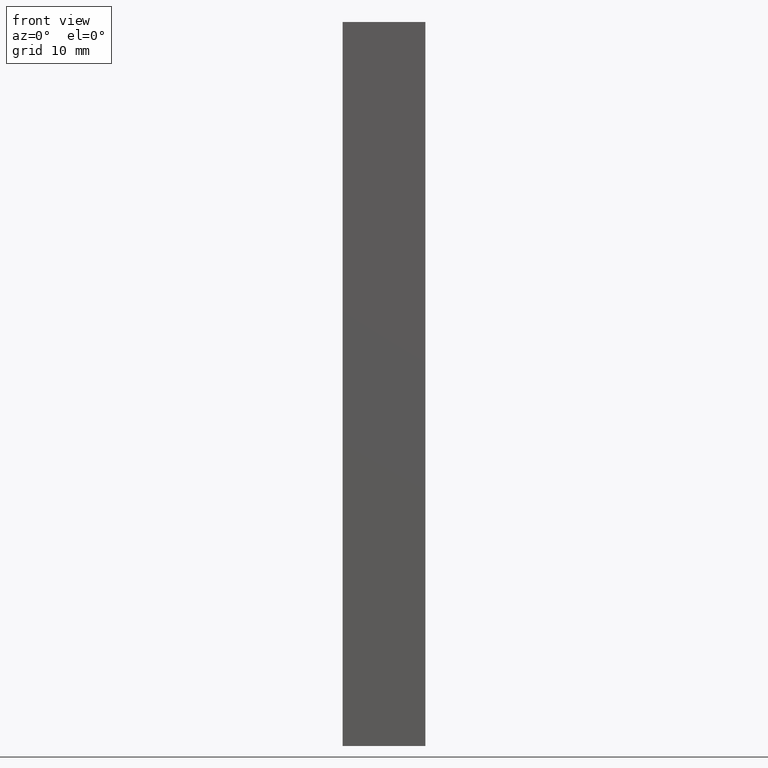
[diagram: clean part render]
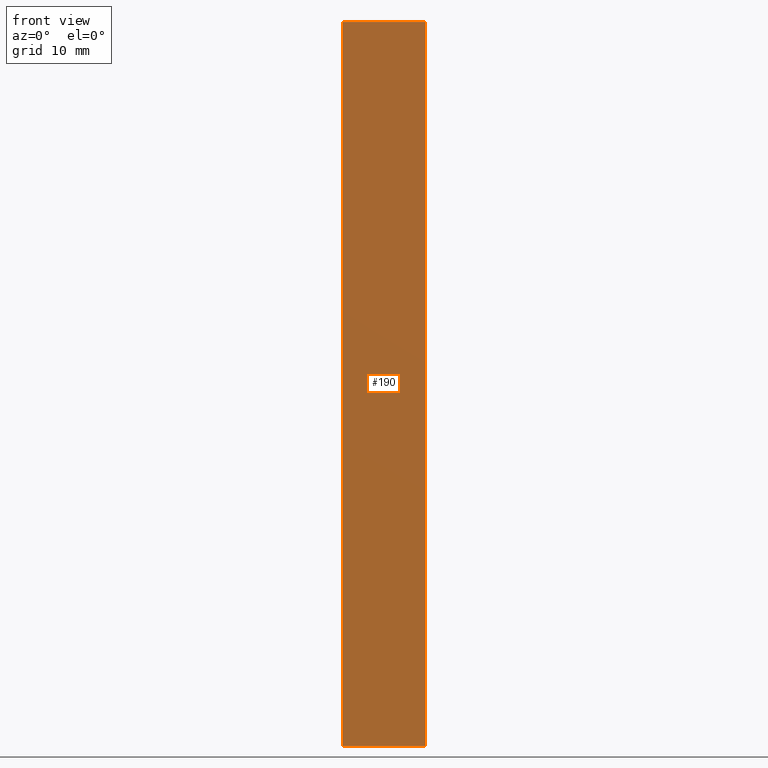
[diagram: same view with one face highlighted and labeled with its STEP entity id]
A machine part, front view. The second image highlights one B-rep face of the part: STEP entity #190.
In plain terms, the highlighted planar face has unit normal (0, -1, 0).
Its self-contained STEP definition (entity closure, byte-faithful):
#24=FACE_OUTER_BOUND('',#34,.T.);
#34=EDGE_LOOP('',(#160,#161,#162,#163));
#37=LINE('',#277,#61);
#46=LINE('',#294,#70);
#58=LINE('',#318,#82);
#59=LINE('',#320,#83);
#61=VECTOR('',#230,10.);
#70=VECTOR('',#241,10.);
#82=VECTOR('',#265,10.);
#83=VECTOR('',#268,10.);
#84=VERTEX_POINT('',#273);
#86=VERTEX_POINT('',#276);
#92=VERTEX_POINT('',#290);
#99=VERTEX_POINT('',#316);
#101=EDGE_CURVE('',#86,#84,#37,.T.);
#110=EDGE_CURVE('',#92,#86,#46,.T.);
#122=EDGE_CURVE('',#84,#99,#58,.T.);
#123=EDGE_CURVE('',#99,#92,#59,.T.);
#160=ORIENTED_EDGE('',*,*,#123,.T.);
#161=ORIENTED_EDGE('',*,*,#110,.T.);
#162=ORIENTED_EDGE('',*,*,#101,.T.);
#163=ORIENTED_EDGE('',*,*,#122,.T.);
#180=PLANE('',#223);
#190=ADVANCED_FACE('',(#24),#180,.T.);
#223=AXIS2_PLACEMENT_3D('',#319,#266,#267);
#230=DIRECTION('',(1.,0.,0.));
#241=DIRECTION('',(0.,0.,-1.));
#265=DIRECTION('',(0.,0.,1.));
#266=DIRECTION('center_axis',(0.,-1.,0.));
#267=DIRECTION('ref_axis',(0.,0.,-1.));
#268=DIRECTION('',(-1.,0.,0.));
#273=CARTESIAN_POINT('',(4.,-2.5,-35.));
#276=CARTESIAN_POINT('',(-4.,-2.5,-35.));
#277=CARTESIAN_POINT('',(4.,-2.5,-35.));
#290=CARTESIAN_POINT('',(-4.,-2.5,35.));
#294=CARTESIAN_POINT('',(-4.,-2.5,0.));
#316=CARTESIAN_POINT('',(4.,-2.5,35.));
#318=CARTESIAN_POINT('',(4.,-2.5,0.));
#319=CARTESIAN_POINT('Origin',(4.,-2.5,0.));
#320=CARTESIAN_POINT('',(4.,-2.5,35.));